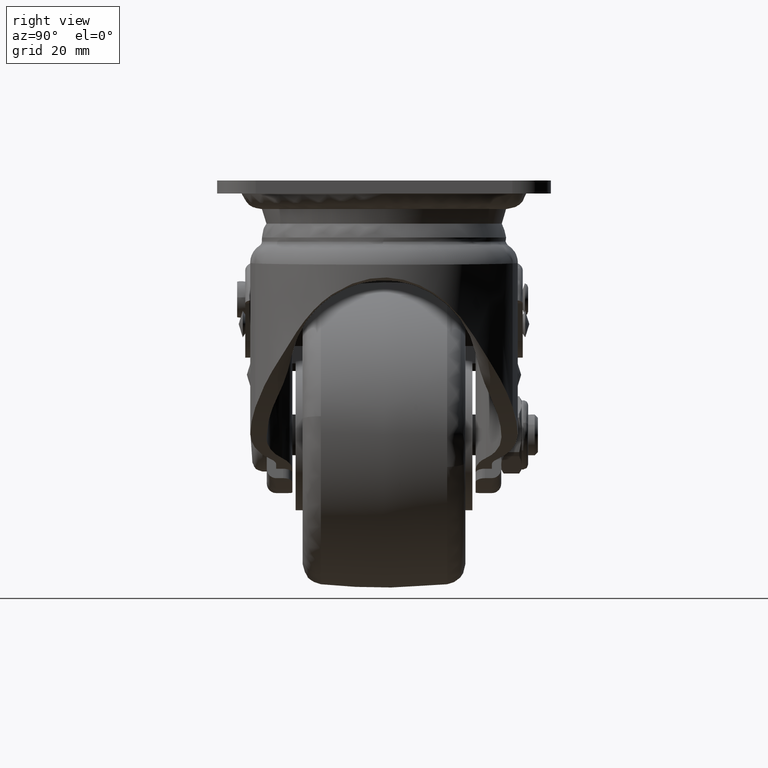
[diagram: clean part render]
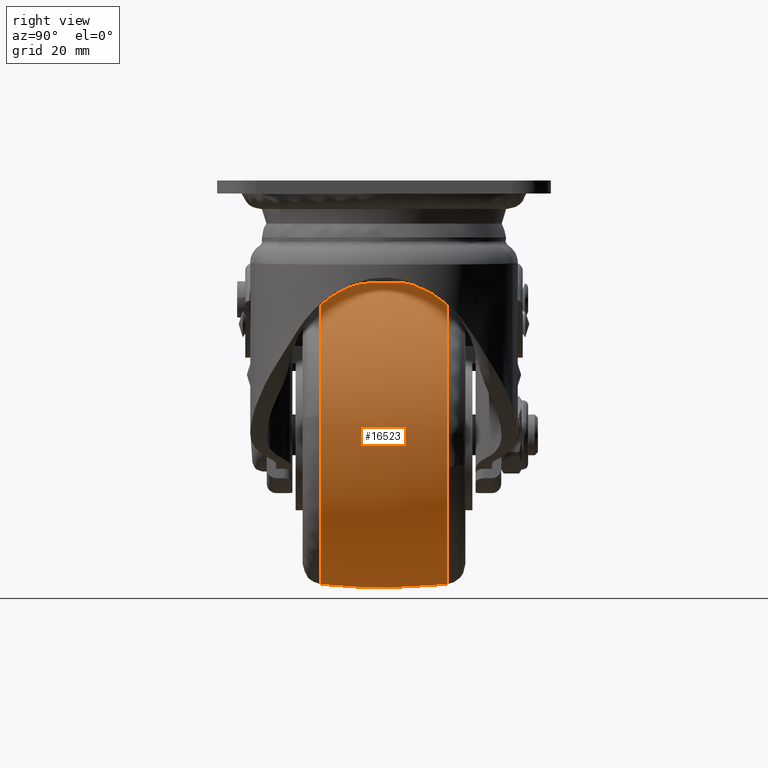
[diagram: same view with one face highlighted and labeled with its STEP entity id]
A machine part, right view. The second image highlights one B-rep face of the part: STEP entity #16523.
In plain terms, the highlighted face is a freeform B-spline surface patch.
Its self-contained STEP definition (entity closure, byte-faithful):
#16075=CARTESIAN_POINT('',(36.405875644652767,-15.517244190990310,-57.900916227053052));
#16076=VERTEX_POINT('',#16075);
#16089=CARTESIAN_POINT('',(0.0,-15.517248015191800,-25.804775498560051));
#16090=VERTEX_POINT('',#16089);
#16091=CARTESIAN_POINT('',(0.0,-15.517248015191800,-25.804775498560051));
#16092=CARTESIAN_POINT('',(2.762015309354054,-15.517247784745040,-25.804173816444699));
#16093=CARTESIAN_POINT('',(6.835623021491289,-15.517247433503190,-26.267000219758138));
#16094=CARTESIAN_POINT('',(11.820559621104600,-15.517246982506780,-27.697546439480480));
#16095=CARTESIAN_POINT('',(15.353448557266940,-15.517246653324770,-29.101315472638039));
#16096=CARTESIAN_POINT('',(18.789000437032211,-15.517246322853209,-30.889145879617050));
#16097=CARTESIAN_POINT('',(22.861780826766150,-15.517245915807390,-33.632062126364310));
#16098=CARTESIAN_POINT('',(26.506971464902868,-15.517245530635980,-36.938276818966642));
#16099=CARTESIAN_POINT('',(29.589016418389871,-15.517245181986899,-40.671605289200627));
#16100=CARTESIAN_POINT('',(31.938852786657382,-15.517244898047361,-44.257442777996637));
#16101=CARTESIAN_POINT('',(33.849363540577862,-15.517244644508009,-48.098605329709578));
#16102=CARTESIAN_POINT('',(35.487666072040852,-15.517244394378190,-52.727533049723682));
#16103=CARTESIAN_POINT('',(36.163687027301137,-15.517244258202069,-55.982769511546053));
#16104=CARTESIAN_POINT('',(36.405875644652767,-15.517244190990310,-57.900916227053052));
#16105=B_SPLINE_CURVE_WITH_KNOTS('',3,(#16091,#16092,#16093,#16094,#16095,#16096,#16097,#16098,#16099,#16100,#16101,#16102,#16103,#16104),.UNSPECIFIED.,.F.,.U.,(4,1,1,1,1,1,1,1,1,1,1,4),(0.000000090997943,8.285864157305063,12.221656226536780,15.536012048484841,19.678954082355158,23.821891911547670,30.243428375318921,34.386369434151383,38.322152184416211,43.086538158821597,47.229473406388777,53.029582657479153),.UNSPECIFIED.);
#16106=EDGE_CURVE('',#16090,#16076,#16105,.T.);
#16108=CARTESIAN_POINT('',(-36.449793876648862,-15.517253867070529,-66.736978037823619));
#16109=VERTEX_POINT('',#16108);
#16110=CARTESIAN_POINT('',(-36.449793876648862,-15.517253867070529,-66.736978037823619));
#16111=CARTESIAN_POINT('',(-36.766620125563982,-15.517253672567650,-64.015518384970832));
#16112=CARTESIAN_POINT('',(-36.781610196371624,-15.517253337423771,-59.799014223715972));
#16113=CARTESIAN_POINT('',(-35.906220192077342,-15.517252862746361,-54.625446420935774));
#16114=CARTESIAN_POINT('',(-34.853318381846627,-15.517252484245351,-50.816134949443743));
#16115=CARTESIAN_POINT('',(-33.211241426965948,-15.517252031817160,-46.604331020601812));
#16116=CARTESIAN_POINT('',(-31.066663379466789,-15.517251576286551,-42.801092929629753));
#16117=CARTESIAN_POINT('',(-28.303677268221229,-15.517251079223829,-39.027671999420242));
#16118=CARTESIAN_POINT('',(-24.978049715487838,-15.517250553069861,-35.390432123296641));
#16119=CARTESIAN_POINT('',(-20.203425399454620,-15.517249915269341,-31.643335860001159));
#16120=CARTESIAN_POINT('',(-15.211505922697750,-15.517249348124450,-28.975815892129042));
#16121=CARTESIAN_POINT('',(-10.136391825273909,-15.517248838922489,-27.109099009636779));
#16122=CARTESIAN_POINT('',(-5.237837474558378,-15.517248406170960,-26.043928235867121));
#16123=CARTESIAN_POINT('',(-1.611622624072624,-15.517248129621610,-25.804741241944090));
#16124=CARTESIAN_POINT('',(0.0,-15.517248015191800,-25.804775498560051));
#16125=B_SPLINE_CURVE_WITH_KNOTS('',3,(#16110,#16111,#16112,#16113,#16114,#16115,#16116,#16117,#16118,#16119,#16120,#16121,#16122,#16123,#16124),.UNSPECIFIED.,.F.,.U.,(4,1,1,1,1,1,1,1,1,1,1,1,4),(0.000000113802045,8.219391140854143,12.570839343757459,15.713570904282880,20.065025449640210,26.108753187031489,28.767989844960670,34.086297800946333,40.855274629771017,46.898961967538767,51.008685844221752,57.052396898689359,61.887284935447973),.UNSPECIFIED.);
#16126=EDGE_CURVE('',#16109,#16090,#16125,.T.);
#16128=CARTESIAN_POINT('',(0.0,-15.517251615525330,-99.195224126982296));
#16129=VERTEX_POINT('',#16128);
#16147=CARTESIAN_POINT('',(12.993981891004360,-15.517251239504841,-96.817571707798606));
#16148=VERTEX_POINT('',#16147);
#16149=CARTESIAN_POINT('',(12.993981891004360,-15.517251239504841,-96.817571707798606));
#16150=CARTESIAN_POINT('',(10.406307770956950,-15.517251341044901,-97.797951400926934));
#16151=CARTESIAN_POINT('',(6.087669705592067,-15.517251482124250,-98.894435714818243));
#16152=CARTESIAN_POINT('',(1.660254085707987,-15.517251583458579,-99.195237910058481));
#16153=CARTESIAN_POINT('',(0.0,-15.517251615525330,-99.195224126982296));
#16154=B_SPLINE_CURVE_WITH_KNOTS('',3,(#16149,#16150,#16151,#16152,#16153),.UNSPECIFIED.,.F.,.U.,(4,1,4),(5.403189E-009,8.301329986024275,13.282128113368509),.UNSPECIFIED.);
#16155=EDGE_CURVE('',#16148,#16129,#16154,.T.);
#16204=CARTESIAN_POINT('',(36.405875644652767,-15.517244190990310,-57.900916227053052));
#16205=CARTESIAN_POINT('',(36.637725771511263,-15.517244445351769,-59.735444862637003));
#16206=CARTESIAN_POINT('',(36.788000071969464,-15.517244874900090,-62.737093276379390));
#16207=CARTESIAN_POINT('',(36.446171158113259,-15.517245582801870,-67.448362211098939));
#16208=CARTESIAN_POINT('',(35.542193834553039,-15.517246323029751,-72.156436367030111));
#16209=CARTESIAN_POINT('',(33.631959594815513,-15.517247227382240,-77.586475972339230));
#16210=CARTESIAN_POINT('',(30.857856948813041,-15.517248126317741,-82.634319732199245));
#16211=CARTESIAN_POINT('',(27.257506174728672,-15.517249015324429,-87.284091954486684));
#16212=CARTESIAN_POINT('',(23.168997745433298,-15.517249819165100,-91.155625767756078));
#16213=CARTESIAN_POINT('',(18.310659672325251,-15.517250587012240,-94.473130075138513));
#16214=CARTESIAN_POINT('',(14.842598304096320,-15.517251029476350,-96.117759025448350));
#16215=CARTESIAN_POINT('',(12.993981891004360,-15.517251239504841,-96.817571707798606));
#16216=B_SPLINE_CURVE_WITH_KNOTS('',3,(#16204,#16205,#16206,#16207,#16208,#16209,#16210,#16211,#16212,#16213,#16214,#16215),.UNSPECIFIED.,.F.,.U.,(4,1,1,1,1,1,1,1,1,4),(0.000000074832982,5.547352502365371,8.990557900537169,14.155356996234641,19.894054312023009,26.206520864703219,31.371317307973740,37.492564738797498,43.039960695233873,48.969875933894137),.UNSPECIFIED.);
#16217=EDGE_CURVE('',#16076,#16148,#16216,.T.);
#16246=CARTESIAN_POINT('',(35.840523833995277,15.517243523742581,-70.373756215157130));
#16247=VERTEX_POINT('',#16246);
#16248=CARTESIAN_POINT('',(0.0,15.517244941485520,-99.195222311844901));
#16249=VERTEX_POINT('',#16248);
#16250=CARTESIAN_POINT('',(35.840523833995277,15.517243523742581,-70.373756215157130));
#16251=CARTESIAN_POINT('',(35.437911812016033,15.517243613918470,-72.206952187519775));
#16252=CARTESIAN_POINT('',(34.387938618169869,15.517243785104670,-75.687017901758921));
#16253=CARTESIAN_POINT('',(32.171683831566327,15.517244016002589,-80.380969105981336));
#16254=CARTESIAN_POINT('',(29.239680460248131,15.517244238050660,-84.895009756107228));
#16255=CARTESIAN_POINT('',(25.969154893089559,15.517244419930650,-88.592472664839050));
#16256=CARTESIAN_POINT('',(22.033745630384079,15.517244585986891,-91.968245400099960));
#16257=CARTESIAN_POINT('',(18.238899227107421,15.517244708830029,-94.465542108342618));
#16258=CARTESIAN_POINT('',(13.159594527327590,15.517244829457850,-96.917796065094620));
#16259=CARTESIAN_POINT('',(7.183901471794767,15.517244918348361,-98.724869779610216));
#16260=CARTESIAN_POINT('',(2.394655222942486,15.517244941497790,-99.195466242375190));
#16261=CARTESIAN_POINT('',(0.0,15.517244941485520,-99.195222311844901));
#16262=B_SPLINE_CURVE_WITH_KNOTS('',3,(#16250,#16251,#16252,#16253,#16254,#16255,#16256,#16257,#16258,#16259,#16260,#16261),.UNSPECIFIED.,.F.,.U.,(4,1,1,1,1,1,1,1,1,4),(0.000000073399661,5.630645765675361,10.873029412046369,15.532919028304240,21.746098861768360,25.629252186804759,31.065807139889451,35.337362765257488,42.521371888064301,49.705314101975468),.UNSPECIFIED.);
#16263=EDGE_CURVE('',#16247,#16249,#16262,.T.);
#16265=CARTESIAN_POINT('',(-36.449792078363529,15.517247110264440,-66.736977862260062));
#16266=VERTEX_POINT('',#16265);
#16282=CARTESIAN_POINT('',(-36.509947206239858,15.517246384932861,-58.817204718416612));
#16283=VERTEX_POINT('',#16282);
#16284=CARTESIAN_POINT('',(-36.449792078363529,15.517247110264440,-66.736977862260062));
#16285=CARTESIAN_POINT('',(-36.755515738580833,15.517246889408410,-64.109525193706290));
#16286=CARTESIAN_POINT('',(-36.775674961646459,15.517246645740689,-61.448998880433862));
#16287=CARTESIAN_POINT('',(-36.509947206239858,15.517246384932861,-58.817204718416612));
#16288=B_SPLINE_CURVE_WITH_KNOTS('',3,(#16284,#16285,#16286,#16287),.UNSPECIFIED.,.F.,.U.,(4,4),(1.982745E-009,7.935470360588272),.UNSPECIFIED.);
#16289=EDGE_CURVE('',#16266,#16283,#16288,.T.);
#16385=CARTESIAN_POINT('',(0.0,15.517241397116400,-25.804779828798051));
#16386=VERTEX_POINT('',#16385);
#16387=CARTESIAN_POINT('',(0.0,15.517241397116400,-25.804779828798051));
#16388=CARTESIAN_POINT('',(2.220023864397337,15.517241398089350,-25.804556103469391));
#16389=CARTESIAN_POINT('',(6.574623149137658,15.517241418800451,-26.201142440954229));
#16390=CARTESIAN_POINT('',(12.359035440265551,15.517241496809440,-27.794211116414392));
#16391=CARTESIAN_POINT('',(17.042281895314250,15.517241598561300,-29.898917965326980));
#16392=CARTESIAN_POINT('',(20.773037892979641,15.517241707206640,-32.158092298669182));
#16393=CARTESIAN_POINT('',(24.093231884334511,15.517241829753770,-34.714648002829719));
#16394=CARTESIAN_POINT('',(26.914208211523970,15.517241960905441,-37.457557601137509));
#16395=CARTESIAN_POINT('',(29.595388174593172,15.517242114470410,-40.675039855189929));
#16396=CARTESIAN_POINT('',(31.951061823511829,15.517242284671809,-44.246851144483927));
#16397=CARTESIAN_POINT('',(34.239438137326353,15.517242507817921,-48.937229540786511));
#16398=CARTESIAN_POINT('',(35.794515372748997,15.517242740580970,-53.837533711617532));
#16399=CARTESIAN_POINT('',(36.725505162397283,15.517243012967640,-59.580331365608068));
#16400=CARTESIAN_POINT('',(36.763973623647097,15.517243268784339,-64.981624239488127));
#16401=CARTESIAN_POINT('',(36.188653187147899,15.517243448856309,-68.789246504257818));
#16402=CARTESIAN_POINT('',(35.840523833995277,15.517243523742581,-70.373756215157130));
#16403=B_SPLINE_CURVE_WITH_KNOTS('',3,(#16387,#16388,#16389,#16390,#16391,#16392,#16393,#16394,#16395,#16396,#16397,#16398,#16399,#16400,#16401,#16402),.UNSPECIFIED.,.F.,.U.,(4,1,1,1,1,1,1,1,1,1,1,1,1,4),(0.000000124599509,6.660043226127520,13.064028750713890,17.931026899459930,22.029544934184859,26.128070457220019,30.482743549594598,33.812759324763427,38.679721249147050,43.290611882078323,49.438392876056668,54.049230488874187,60.709383017432451,65.576312632785587),.UNSPECIFIED.);
#16404=EDGE_CURVE('',#16386,#16247,#16403,.T.);
#16443=CARTESIAN_POINT('',(-36.509947206239858,15.517246384932861,-58.817204718416612));
#16444=CARTESIAN_POINT('',(-36.221580263859920,15.517246146751090,-55.951356966242066));
#16445=CARTESIAN_POINT('',(-35.393496967388430,15.517245806219240,-52.222477594457111));
#16446=CARTESIAN_POINT('',(-33.444743096244132,15.517245294849261,-47.247827922024307));
#16447=CARTESIAN_POINT('',(-31.646073058745252,15.517244905576820,-43.740285320081469));
#16448=CARTESIAN_POINT('',(-28.677531222460011,15.517244371812581,-39.375833229134962));
#16449=CARTESIAN_POINT('',(-25.217121557795849,15.517243854103009,-35.657660349268731));
#16450=CARTESIAN_POINT('',(-21.206795829682921,15.517243338100339,-32.449153533314707));
#16451=CARTESIAN_POINT('',(-16.725936004355880,15.517242822096300,-29.657589795303782));
#16452=CARTESIAN_POINT('',(-11.256291264800000,15.517242277609700,-27.368972753119831));
#16453=CARTESIAN_POINT('',(-5.338959786641052,15.517241777369289,-26.056915075543621));
#16454=CARTESIAN_POINT('',(-1.685988069780530,15.517241511117360,-25.804736812571310));
#16455=CARTESIAN_POINT('',(0.0,15.517241397116400,-25.804779828798051));
#16456=B_SPLINE_CURVE_WITH_KNOTS('',3,(#16443,#16444,#16445,#16446,#16447,#16448,#16449,#16450,#16451,#16452,#16453,#16454,#16455),.UNSPECIFIED.,.F.,.U.,(4,1,1,1,1,1,1,1,1,1,4),(0.000000092651987,8.640710841589979,11.380454229756561,16.016950632001691,20.442706573468300,27.186576993280941,31.190825669263820,35.827351897055308,42.992837122254002,48.893809123488687,53.951785527290859),.UNSPECIFIED.);
#16457=EDGE_CURVE('',#16283,#16386,#16456,.T.);
#16462=CARTESIAN_POINT('',(-36.282641195028837,17.057819787561680,-66.717554832738287));
#16463=CARTESIAN_POINT('',(-38.222043254461973,-0.000003390297983,-66.942994168436528));
#16464=CARTESIAN_POINT('',(-36.282640434073301,-17.057826480471185,-66.717554744283532));
#16465=CARTESIAN_POINT('',(-36.526946503292031,17.057819787561687,-64.615853208624685));
#16466=CARTESIAN_POINT('',(-38.479407320367116,-0.000003390297982,-64.728951096074709));
#16467=CARTESIAN_POINT('',(-36.526945737212664,-17.057826480471181,-64.615853164248904));
#16468=CARTESIAN_POINT('',(-36.526946503292031,17.057819787561687,-62.500000000000014));
#16469=CARTESIAN_POINT('',(-38.479407320367109,-0.000003390297979,-62.500000000000000));
#16470=CARTESIAN_POINT('',(-36.526945737212671,-17.057826480471181,-62.500000000000014));
#16471=CARTESIAN_POINT('',(-36.526946503292031,17.057819787561687,-25.973053496707976));
#16472=CARTESIAN_POINT('',(-38.479407320367123,-0.000003390297980,-24.020592679632884));
#16473=CARTESIAN_POINT('',(-36.526945737212678,-17.057826480471185,-25.973054262787322));
#16474=CARTESIAN_POINT('',(0.0,17.057819787561687,-25.973053496707969));
#16475=CARTESIAN_POINT('',(0.0,-0.000003390297979,-24.020592679632884));
#16476=CARTESIAN_POINT('',(0.0,-17.057826480471181,-25.973054262787322));
#16477=CARTESIAN_POINT('',(36.526946503292031,17.057819787561687,-25.973053496707976));
#16478=CARTESIAN_POINT('',(38.479407320367123,-0.000003390297980,-24.020592679632884));
#16479=CARTESIAN_POINT('',(36.526945737212678,-17.057826480471185,-25.973054262787322));
#16480=CARTESIAN_POINT('',(36.526946503292031,17.057819787561687,-62.500000000000014));
#16481=CARTESIAN_POINT('',(38.479407320367109,-0.000003390297979,-62.500000000000000));
#16482=CARTESIAN_POINT('',(36.526945737212671,-17.057826480471181,-62.500000000000014));
#16483=CARTESIAN_POINT('',(36.526946503292031,17.057819787561687,-99.026946503292024));
#16484=CARTESIAN_POINT('',(38.479407320367123,-0.000003390297980,-100.979407320367120));
#16485=CARTESIAN_POINT('',(36.526945737212678,-17.057826480471185,-99.026945737212685));
#16486=CARTESIAN_POINT('',(0.0,17.057819787561687,-99.026946503292038));
#16487=CARTESIAN_POINT('',(0.0,-0.000003390297979,-100.979407320367100));
#16488=CARTESIAN_POINT('',(0.0,-17.057826480471181,-99.026945737212671));
#16496=(BOUNDED_SURFACE()B_SPLINE_SURFACE(2,2,((#16462,#16465,#16468,#16471,#16474,#16477,#16480,#16483,#16486),(#16463,#16466,#16469,#16472,#16475,#16478,#16481,#16484,#16487),(#16464,#16467,#16470,#16473,#16476,#16479,#16482,#16485,#16488)),.UNSPECIFIED.,.F.,.F.,.U.)B_SPLINE_SURFACE_WITH_KNOTS((3,3),(3,2,2,2,3),(0.0,34.226660885250212),(0.0,4.970561711536941,67.102596067501125,129.234630423465290,191.366664779429500),.UNSPECIFIED.)GEOMETRIC_REPRESENTATION_ITEM()RATIONAL_B_SPLINE_SURFACE(((0.839999910101653,0.857278070373645,0.877847307975337,0.620731784315716,0.877847307975337,0.620731784315716,0.877847307975337,0.620731784315716,0.877847307975337),(0.834550810027260,0.851716886448658,0.872152690900182,0.616705081965613,0.872152690900182,0.616705081965613,0.872152690900182,0.616705081965613,0.872152690900182),(0.839999912253655,0.857278072569913,0.877847310224300,0.620731785905974,0.877847310224300,0.620731785905974,0.877847310224300,0.620731785905974,0.877847310224300)))REPRESENTATION_ITEM('')SURFACE());
#16497=ORIENTED_EDGE('',*,*,#16126,.T.);
#16498=ORIENTED_EDGE('',*,*,#16106,.T.);
#16499=ORIENTED_EDGE('',*,*,#16217,.T.);
#16500=ORIENTED_EDGE('',*,*,#16155,.T.);
#16501=CARTESIAN_POINT('',(0.0,15.517244941485520,-99.195222311844901));
#16502=CARTESIAN_POINT('',(0.0,11.168655929243510,-99.647543614672713));
#16503=CARTESIAN_POINT('',(0.0,0.813980225986460,-100.268620966627400));
#16504=CARTESIAN_POINT('',(0.0,-9.558082453947550,-99.815197305925096));
#16505=CARTESIAN_POINT('',(0.0,-15.517251615525330,-99.195224126982296));
#16506=B_SPLINE_CURVE_WITH_KNOTS('',3,(#16501,#16502,#16503,#16504,#16505),.UNSPECIFIED.,.F.,.U.,(4,1,4),(9.149552E-010,13.116155739413440,31.090131315760701),.UNSPECIFIED.);
#16507=EDGE_CURVE('',#16249,#16129,#16506,.T.);
#16508=ORIENTED_EDGE('',*,*,#16507,.F.);
#16509=ORIENTED_EDGE('',*,*,#16263,.F.);
#16510=ORIENTED_EDGE('',*,*,#16404,.F.);
#16511=ORIENTED_EDGE('',*,*,#16457,.F.);
#16512=ORIENTED_EDGE('',*,*,#16289,.F.);
#16513=CARTESIAN_POINT('',(-36.449792078363529,15.517247110264440,-66.736977862260062));
#16514=CARTESIAN_POINT('',(-37.065614696172652,9.558077491919457,-66.808562121224753));
#16515=CARTESIAN_POINT('',(-37.516025275217288,-0.813987728664579,-66.860918599541492));
#16516=CARTESIAN_POINT('',(-36.899080999770419,-11.168663713412091,-66.789203939596092));
#16517=CARTESIAN_POINT('',(-36.449793876648862,-15.517253867070529,-66.736978037823619));
#16518=B_SPLINE_CURVE_WITH_KNOTS('',3,(#16513,#16514,#16515,#16516,#16517),.UNSPECIFIED.,.F.,.U.,(4,1,4),(9.156125E-010,17.973978146547658,31.090135759934359),.UNSPECIFIED.);
#16519=EDGE_CURVE('',#16266,#16109,#16518,.T.);
#16520=ORIENTED_EDGE('',*,*,#16519,.T.);
#16521=EDGE_LOOP('',(#16497,#16498,#16499,#16500,#16508,#16509,#16510,#16511,#16512,#16520));
#16522=FACE_OUTER_BOUND('',#16521,.T.);
#16523=ADVANCED_FACE('',(#16522),#16496,.T.);